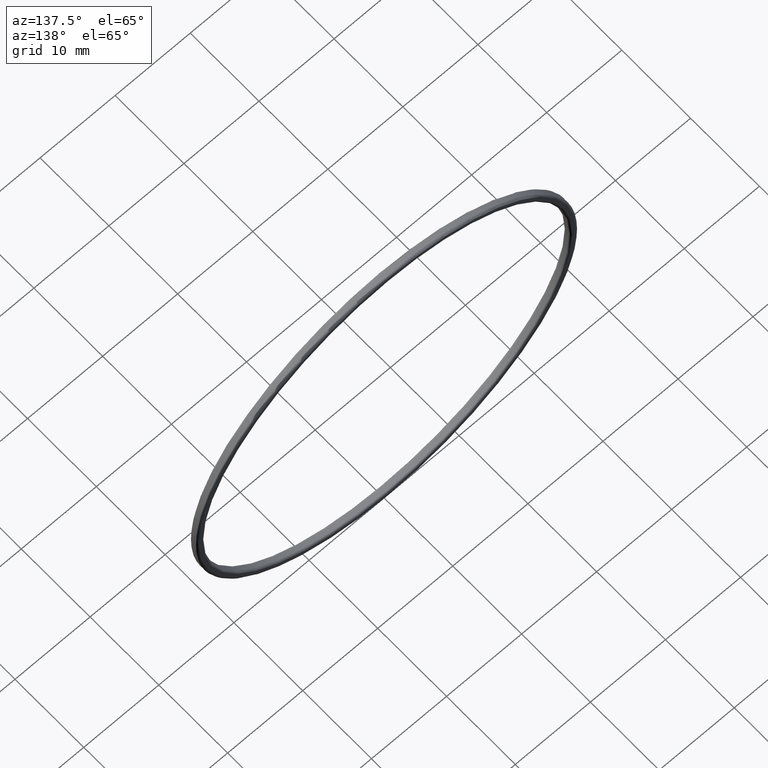
[diagram: clean part render]
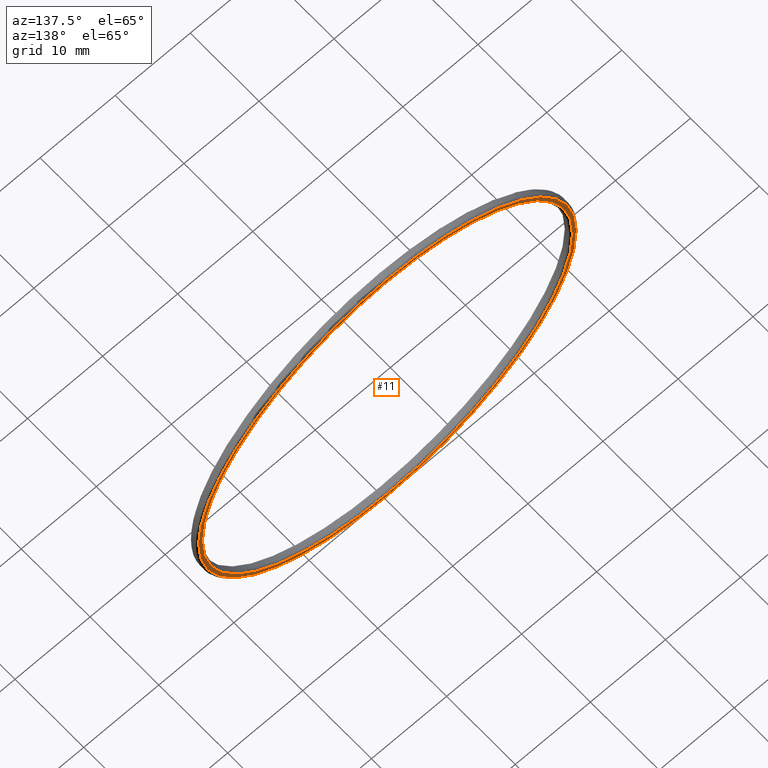
[diagram: same view with one face highlighted and labeled with its STEP entity id]
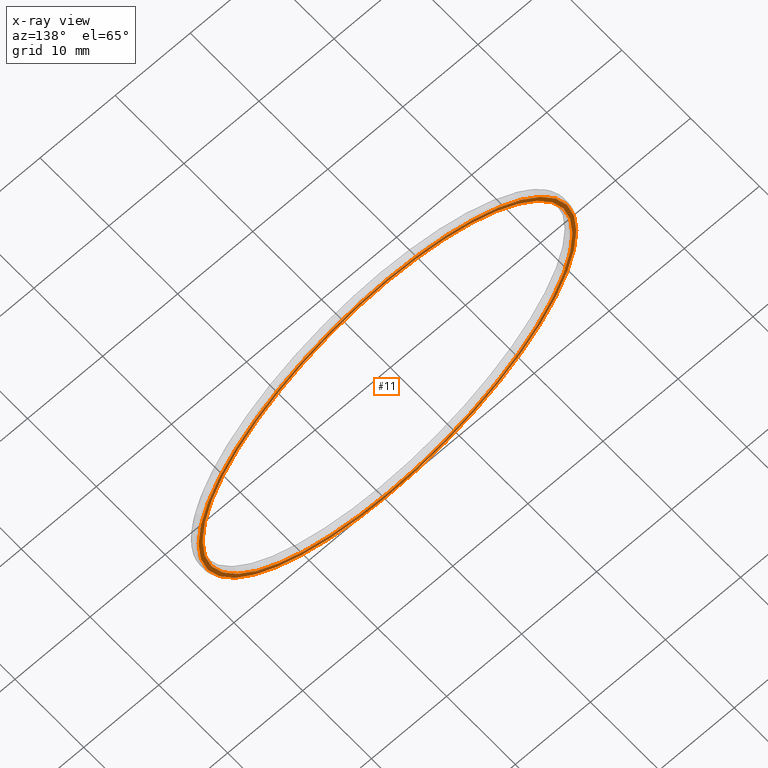
[diagram: x-ray of the same camera — body ghosted, the highlighted face saturated]
A machine part, auxiliary view. The second image highlights one B-rep face of the part: STEP entity #11.
The next image is the same camera in x-ray: the body ghosted, the highlighted face saturated — about 0% of this face is hidden behind the body in this view.
In plain terms, the highlighted planar face has unit normal (0, -1, 0).
Its self-contained STEP definition (entity closure, byte-faithful):
#3 = CARTESIAN_POINT ( 'NONE',  ( 0.0000000000000000000, 0.4999999999999978351, 0.0000000000000000000 ) ) ;
#11 = ADVANCED_FACE ( 'NONE', ( #135, #398 ), #322, .F. ) ;
#12 = VERTEX_POINT ( 'NONE', #290 ) ;
#32 = CARTESIAN_POINT ( 'NONE',  ( 3.018754359898225504E-15, 0.4999999999999977240, 24.64999999999999858 ) ) ;
#36 = CIRCLE ( 'NONE', #397, 25.14999999999999858 ) ;
#46 = AXIS2_PLACEMENT_3D ( 'NONE', #357, #120, #413 ) ;
#49 = DIRECTION ( 'NONE',  ( -0.0000000000000000000, 1.000000000000000000, -0.0000000000000000000 ) ) ;
#58 = EDGE_CURVE ( 'NONE', #124, #142, #36, .T. ) ;
#63 = DIRECTION ( 'NONE',  ( 0.0000000000000000000, -1.000000000000000000, 0.0000000000000000000 ) ) ;
#96 = DIRECTION ( 'NONE',  ( 0.0000000000000000000, 0.0000000000000000000, -1.000000000000000000 ) ) ;
#102 = DIRECTION ( 'NONE',  ( 0.0000000000000000000, -0.0000000000000000000, -1.000000000000000000 ) ) ;
#112 = AXIS2_PLACEMENT_3D ( 'NONE', #140, #63, #102 ) ;
#115 = ORIENTED_EDGE ( 'NONE', *, *, #58, .T. ) ;
#117 = EDGE_CURVE ( 'NONE', #122, #12, #359, .T. ) ;
#120 = DIRECTION ( 'NONE',  ( 0.0000000000000000000, -1.000000000000000000, 0.0000000000000000000 ) ) ;
#122 = VERTEX_POINT ( 'NONE', #32 ) ;
#124 = VERTEX_POINT ( 'NONE', #254 ) ;
#130 = CARTESIAN_POINT ( 'NONE',  ( 0.0000000000000000000, 0.4999999999999978351, 0.0000000000000000000 ) ) ;
#135 = FACE_BOUND ( 'NONE', #366, .T. ) ;
#140 = CARTESIAN_POINT ( 'NONE',  ( 24.39999999999999858, 0.4999999999999978351, 0.0000000000000000000 ) ) ;
#142 = VERTEX_POINT ( 'NONE', #251 ) ;
#146 = AXIS2_PLACEMENT_3D ( 'NONE', #130, #49, #96 ) ;
#177 = CARTESIAN_POINT ( 'NONE',  ( 0.0000000000000000000, 0.4999999999999978351, 0.0000000000000000000 ) ) ;
#185 = DIRECTION ( 'NONE',  ( -0.0000000000000000000, 1.000000000000000000, -0.0000000000000000000 ) ) ;
#220 = CIRCLE ( 'NONE', #146, 25.14999999999999858 ) ;
#250 = CIRCLE ( 'NONE', #46, 24.64999999999999858 ) ;
#251 = CARTESIAN_POINT ( 'NONE',  ( 0.0000000000000000000, 0.4999999999999978351, -25.14999999999999858 ) ) ;
#254 = CARTESIAN_POINT ( 'NONE',  ( 3.095294784844934972E-15, 0.4999999999999978351, 25.14999999999999858 ) ) ;
#258 = EDGE_CURVE ( 'NONE', #12, #122, #250, .T. ) ;
#266 = ORIENTED_EDGE ( 'NONE', *, *, #117, .T. ) ;
#290 = CARTESIAN_POINT ( 'NONE',  ( 0.0000000000000000000, 0.4999999999999977240, -24.64999999999999858 ) ) ;
#306 = ORIENTED_EDGE ( 'NONE', *, *, #332, .T. ) ;
#322 = PLANE ( 'NONE',  #112 ) ;
#332 = EDGE_CURVE ( 'NONE', #142, #124, #220, .T. ) ;
#356 = ORIENTED_EDGE ( 'NONE', *, *, #258, .T. ) ;
#357 = CARTESIAN_POINT ( 'NONE',  ( 0.0000000000000000000, 0.4999999999999978351, 0.0000000000000000000 ) ) ;
#359 = CIRCLE ( 'NONE', #437, 24.64999999999999858 ) ;
#366 = EDGE_LOOP ( 'NONE', ( #356, #266 ) ) ;
#397 = AXIS2_PLACEMENT_3D ( 'NONE', #3, #185, #431 ) ;
#398 = FACE_OUTER_BOUND ( 'NONE', #414, .T. ) ;
#413 = DIRECTION ( 'NONE',  ( 0.0000000000000000000, 0.0000000000000000000, -1.000000000000000000 ) ) ;
#414 = EDGE_LOOP ( 'NONE', ( #306, #115 ) ) ;
#426 = DIRECTION ( 'NONE',  ( 0.0000000000000000000, 0.0000000000000000000, -1.000000000000000000 ) ) ;
#429 = DIRECTION ( 'NONE',  ( 0.0000000000000000000, -1.000000000000000000, 0.0000000000000000000 ) ) ;
#431 = DIRECTION ( 'NONE',  ( 0.0000000000000000000, 0.0000000000000000000, -1.000000000000000000 ) ) ;
#437 = AXIS2_PLACEMENT_3D ( 'NONE', #177, #429, #426 ) ;